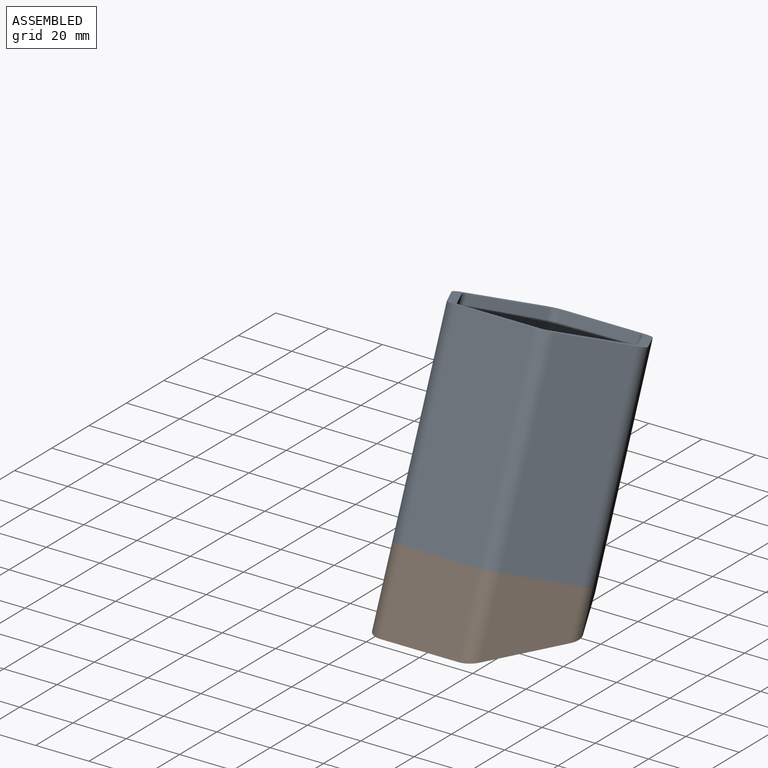
[diagram: assembled view]
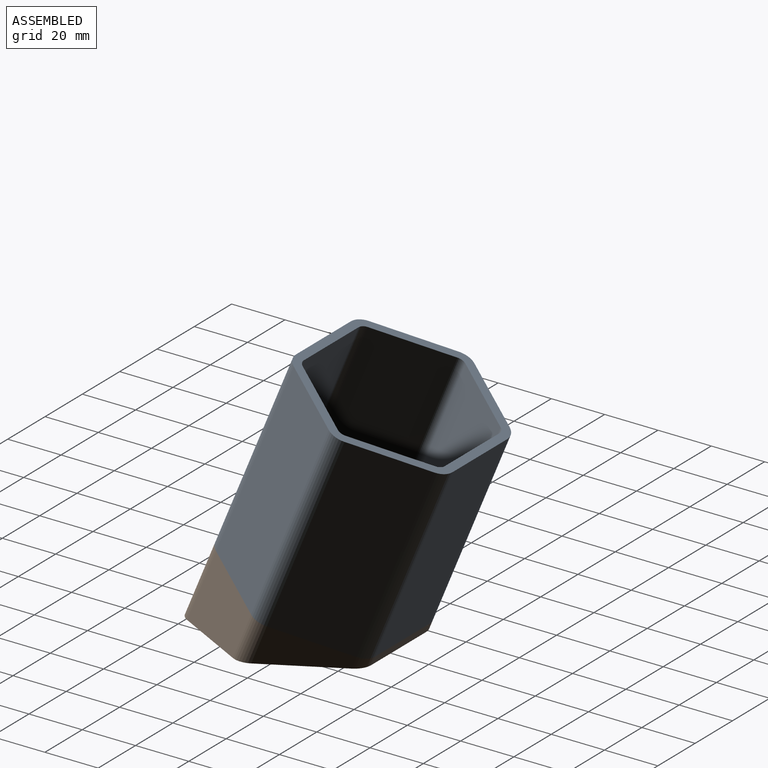
[diagram: assembled view, second angle]
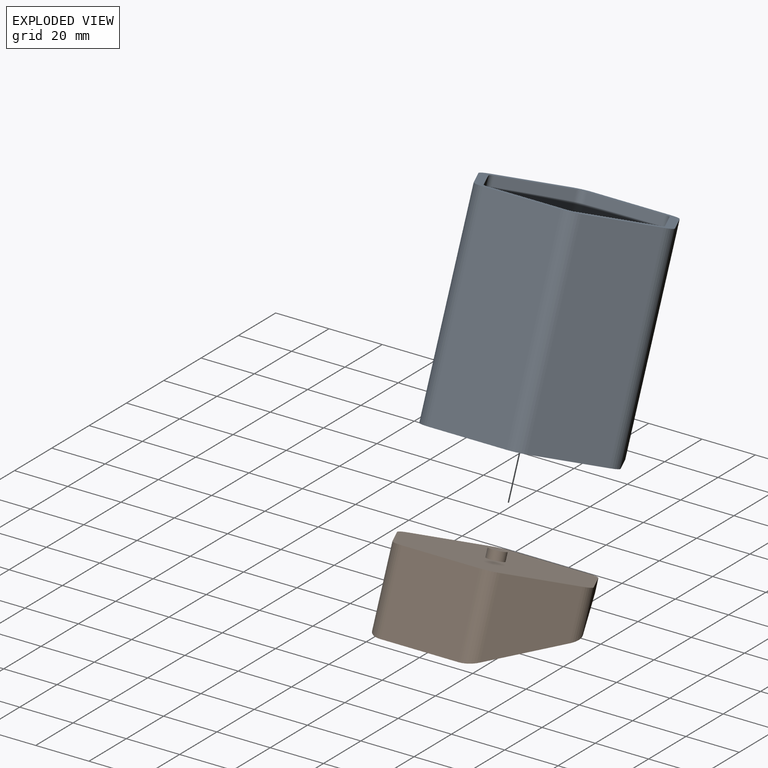
[diagram: exploded view]
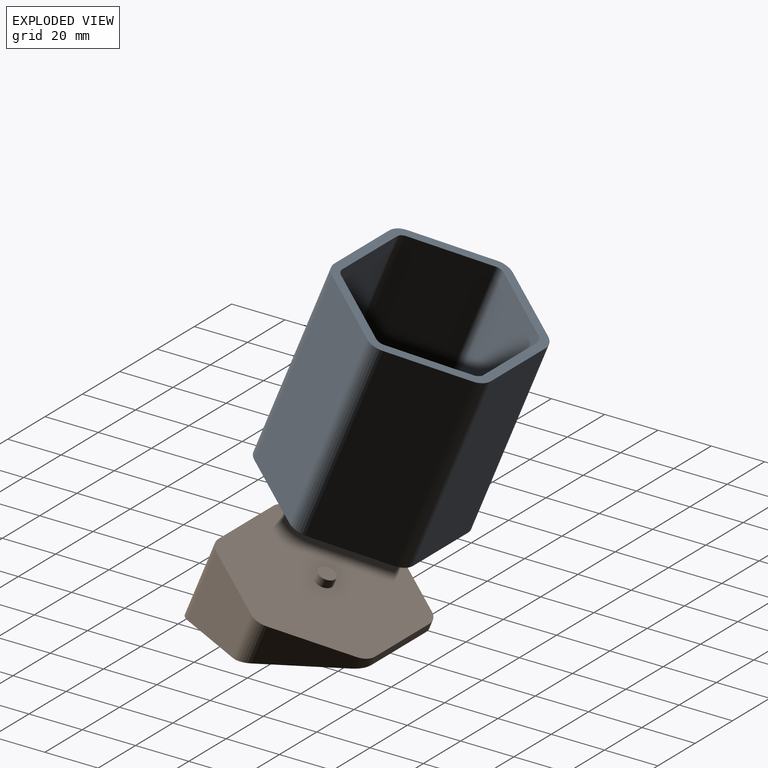
[diagram: exploded view, second angle]
ASSEMBLY  parts=2 mates=3
PART A: 40 faces, bbox 71.4x63.5x76.2 mm
  f0: plane 76.2x25.4mm, normal (0.87,0.5,0), area 2234.9mm2, adj f12,f13,f22,f27
  f1: plane 76.2x29.33mm, normal (0,1,0), area 2234.9mm2, adj f12,f13,f22,f23
  f2: plane 76.2x25.4mm, normal (-0.87,0.5,0), area 2234.9mm2, adj f12,f13,f23,f24
  f3: plane 76.2x25.4mm, normal (-0.87,-0.5,0), area 2234.9mm2, adj f12,f13,f24,f25
  f4: plane 76.2x29.33mm, normal (0,-1,0), area 2234.9mm2, adj f12,f13,f25,f26
  f5: plane 69.85x25.4mm, normal (0.87,0.5,0), area 2048.7mm2, adj f12,f16,f21,f32
  f6: plane 69.85x25.4mm, normal (0.87,-0.5,0), area 2048.7mm2, adj f12,f16,f17,f36
  f7: plane 69.85x29.33mm, normal (0,-1,0), area 2048.7mm2, adj f12,f17,f18,f39
  f8: plane 69.85x25.4mm, normal (-0.87,-0.5,0), area 2048.7mm2, adj f12,f18,f19,f35
  f9: plane 69.85x25.4mm, normal (-0.87,0.5,0), area 2048.7mm2, adj f12,f19,f20,f31
  f10: plane 69.85x29.33mm, normal (0,1,0), area 2048.7mm2, adj f12,f20,f21,f28
  f11: plane 76.2x25.4mm, normal (0.87,-0.5,0), area 2234.9mm2, adj f12,f13,f26,f27
  f12: plane 71.36x63.5mm, normal (0,0,1), area 653.7mm2, adj f0,f1,f2,f3,f4,f5,f6,f7
  f13: plane 71.36x63.5mm, normal (0,0,-1), area 3447.4mm2, adj f0,f1,f2,f3,f4,f11,f14,f22
  f14: cylinder r=3.17mm len=6.35mm, axis (0,0,-1), area 63.3mm2, adj f13,f15
  f15: plane 58.66x50.8mm, normal (0,0,1), area 2203.2mm2, adj f14,f28,f31,f32,f35,f36,f39
  f16: cylinder r=3.17mm len=69.85mm, axis (0,0,1), area 232.2mm2, adj f5,f6,f12,f34
  f17: cylinder r=3.17mm len=69.85mm, axis (0,0,1), area 232.2mm2, adj f6,f7,f12,f38
  f18: cylinder r=3.17mm len=69.85mm, axis (0,0,1), area 232.2mm2, adj f7,f8,f12,f37
  f19: cylinder r=3.17mm len=69.85mm, axis (0,0,1), area 232.2mm2, adj f8,f9,f12,f33
  f20: cylinder r=3.17mm len=69.85mm, axis (0,0,1), area 232.2mm2, adj f9,f10,f12,f29
  f21: cylinder r=3.17mm len=69.85mm, axis (0,0,1), area 232.2mm2, adj f5,f10,f12,f30
  f22: cylinder r=6.35mm len=76.2mm, axis (0,0,-1), area 506.7mm2, adj f0,f1,f12,f13
  f23: cylinder r=6.35mm len=76.2mm, axis (0,0,-1), area 506.7mm2, adj f1,f2,f12,f13
  f24: cylinder r=6.35mm len=76.2mm, axis (0,0,-1), area 506.7mm2, adj f2,f3,f12,f13
  f25: cylinder r=6.35mm len=76.2mm, axis (0,0,-1), area 506.7mm2, adj f3,f4,f12,f13
  f26: cylinder r=6.35mm len=76.2mm, axis (0,0,-1), area 506.7mm2, adj f4,f11,f12,f13
  f27: cylinder r=6.35mm len=76.2mm, axis (0,0,-1), area 506.7mm2, adj f0,f11,f12,f13
  f28: cylinder r=3.17mm len=29.33mm, axis (-1,0,0), area 146.3mm2, adj f10,f15,f29,f30
  f29: sphere r=3.17mm, area 10.6mm2, adj f20,f28,f31
  f30: sphere r=3.17mm, area 10.6mm2, adj f21,f28,f32
  f31: cylinder r=3.17mm len=26.99mm, axis (-0.5,-0.87,0), area 146.3mm2, adj f9,f15,f29,f33
  f32: cylinder r=3.17mm len=26.99mm, axis (-0.5,0.87,0), area 146.3mm2, adj f5,f15,f30,f34
  f33: sphere r=3.17mm, area 10.6mm2, adj f19,f31,f35
  f34: sphere r=3.17mm, area 10.6mm2, adj f16,f32,f36
  f35: cylinder r=3.17mm len=26.99mm, axis (0.5,-0.87,0), area 146.3mm2, adj f8,f15,f33,f37
  f36: cylinder r=3.17mm len=26.99mm, axis (0.5,0.87,0), area 146.3mm2, adj f6,f15,f34,f38
  f37: sphere r=3.17mm, area 10.6mm2, adj f18,f35,f39
  f38: sphere r=3.17mm, area 10.6mm2, adj f17,f36,f39
  f39: cylinder r=3.17mm len=29.33mm, axis (1,0,0), area 146.3mm2, adj f7,f15,f37,f38
PART B: 16 faces, bbox 71.4x70x29.9 mm
  f0: plane 29.31x14.66mm, normal (0.87,0.46,-0.19), area 293.7mm2, adj f6,f7,f10,f11
  f1: plane 29.33x3.18mm, normal (0,0.92,-0.38), area 100.8mm2, adj f6,f7,f11,f12
  f2: plane 29.31x14.66mm, normal (-0.87,0.46,-0.19), area 293.7mm2, adj f6,f7,f12,f13
  f3: plane 34.34x26.26mm, normal (0.87,-0.46,0.19), area 679.4mm2, adj f6,f7,f10,f15
  f4: plane 34.34x26.26mm, normal (-0.87,-0.46,0.19), area 679.4mm2, adj f6,f7,f13,f14
  f5: plane 29.33x27.48mm, normal (0,-0.92,0.38), area 872.2mm2, adj f6,f7,f14,f15
  f6: plane 71.36x58.67mm, normal (0,0.38,0.92), area 3447.4mm2, adj f0,f1,f2,f3,f4,f5,f8,f10
  f7: plane 71.36x68.73mm, normal (0,0,-1), area 3765.7mm2, adj f0,f1,f2,f3,f4,f5,f10,f11
  f8: cylinder r=3.17mm len=7.08mm, axis (0,-0.38,-0.92), area 63.3mm2, adj f6,f9
  f9: plane 6.35x5.87mm, normal (0,0.38,0.92), area 31.7mm2, adj f8
  f10: cylinder r=6.35mm len=18.97mm, axis (0,0.38,0.92), area 110.3mm2, adj f0,f3,f6,f7
  f11: cylinder r=6.35mm len=5.61mm, axis (0,0.38,0.92), area 25.9mm2, adj f0,f1,f6,f7
  f12: cylinder r=6.35mm len=5.61mm, axis (0,0.38,0.92), area 25.9mm2, adj f1,f2,f6,f7
  f13: cylinder r=6.35mm len=18.97mm, axis (0,0.38,0.92), area 110.3mm2, adj f2,f4,f6,f7
  f14: cylinder r=6.35mm len=28.69mm, axis (0,0.38,0.92), area 194.7mm2, adj f4,f5,f6,f7
  f15: cylinder r=6.35mm len=28.69mm, axis (0,0.38,0.92), area 194.7mm2, adj f3,f5,f6,f7
PLACE A rot(axis=(-1,0,0),22.5deg) t=(0,40.71,15.33)mm
PLACE B t=(0,70.05,0)mm
MATE planar B.f0 <-> A.f0  axis (0.87,0.46,-0.19) through (28.78,51.23,5.05)mm
MATE planar B.f5 <-> A.f4  axis (0,-0.92,0.38) through (0,5.69,13.74)mm
MATE planar B.f8 <-> A.f14  axis (0,0.38,0.92) through (0,40.71,15.33)mm
